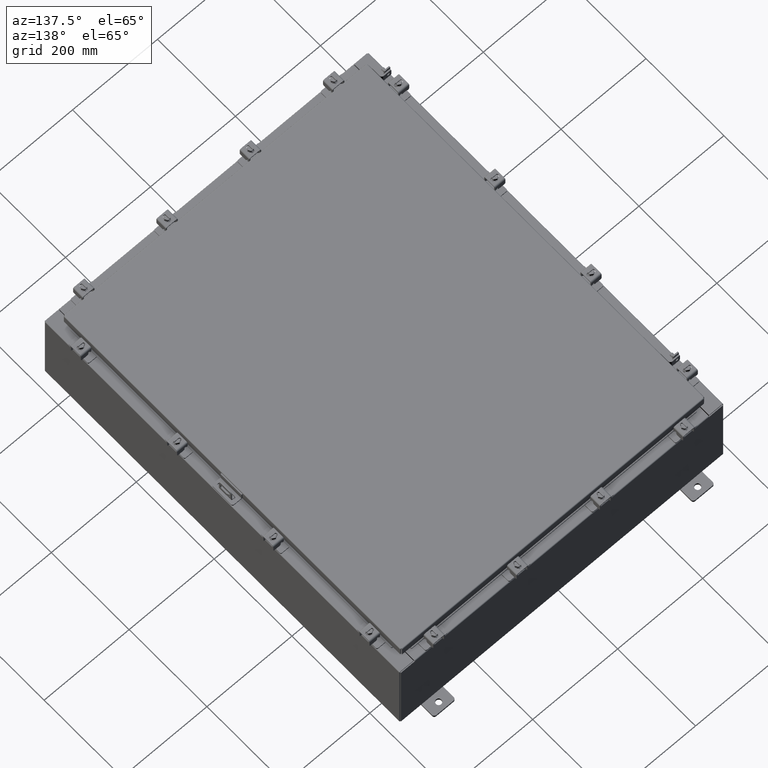
[diagram: clean part render]
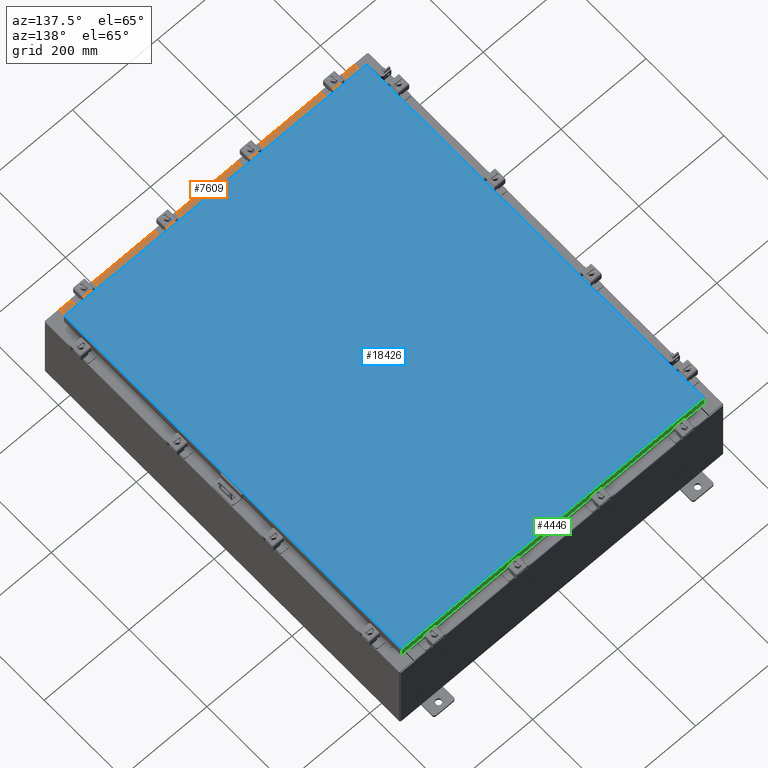
[diagram: same view with three faces highlighted in distinct colors, each labeled with its STEP entity id]
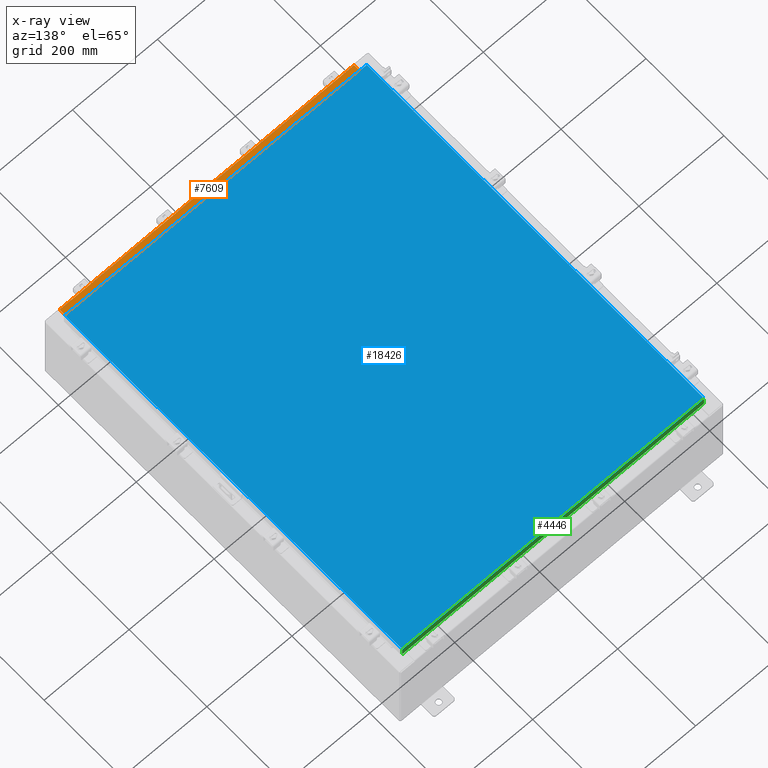
[diagram: x-ray of the same camera — body ghosted, the three highlighted faces saturated]
A machine part, auxiliary view with three faces highlighted in distinct colors.
The next image is the same camera in x-ray (body ghosted, the three faces saturated) — at least one of them is partly hidden behind the body in this view.
Their STEP definitions:

[orange] entity #7609 — the highlighted planar face has unit normal (-0, -0, 1).
#338 = CARTESIAN_POINT ( 'NONE',  ( 13.63720000000000400, -1.287299999999999200, 4.000000000000005300 ) ) ;
#1616 = CARTESIAN_POINT ( 'NONE',  ( 6.596618369225443700E-016, -0.08770000000000026400, 4.000000000000000900 ) ) ;
#1857 = CARTESIAN_POINT ( 'NONE',  ( 13.63720000000000400, -1.287299999999999200, 4.000000000000006200 ) ) ;
#1987 = FACE_OUTER_BOUND ( 'NONE', #8365, .T. ) ;
#2007 = DIRECTION ( 'NONE',  ( -1.000000000000000000, -3.373213873859530100E-017, -1.665334536937734800E-016 ) ) ;
#2935 = EDGE_CURVE ( 'NONE', #21960, #7464, #13908, .T. ) ;
#3644 = EDGE_CURVE ( 'NONE', #14275, #21960, #10017, .T. ) ;
#3762 = EDGE_CURVE ( 'NONE', #14275, #14029, #12508, .T. ) ;
#4828 = DIRECTION ( 'NONE',  ( 5.376446204296997200E-017, 1.000000000000000000, -3.599933028129398900E-015 ) ) ;
#4849 = VECTOR ( 'NONE', #14474, 39.37007874015748100 ) ;
#5131 = AXIS2_PLACEMENT_3D ( 'NONE', #22184, #20530, #10098 ) ;
#6847 = CARTESIAN_POINT ( 'NONE',  ( 13.63720000000000400, -0.08770000000000026400, 4.000000000000001800 ) ) ;
#7317 = VECTOR ( 'NONE', #2007, 39.37007874015748100 ) ;
#7464 = VERTEX_POINT ( 'NONE', #14146 ) ;
#7609 = ADVANCED_FACE ( 'NONE', ( #1987 ), #18805, .T. ) ;
#8241 = ORIENTED_EDGE ( 'NONE', *, *, #3644, .F. ) ;
#8365 = EDGE_LOOP ( 'NONE', ( #21089, #13527, #8241, #19393 ) ) ;
#8710 = VECTOR ( 'NONE', #21926, 39.37007874015748100 ) ;
#9152 = VECTOR ( 'NONE', #4828, 39.37007874015748100 ) ;
#9681 = LINE ( 'NONE', #22139, #9152 ) ;
#10017 = LINE ( 'NONE', #10399, #4849 ) ;
#10098 = DIRECTION ( 'NONE',  ( -5.376446204296997200E-017, -1.000000000000000000, 3.599933028129398900E-015 ) ) ;
#10399 = CARTESIAN_POINT ( 'NONE',  ( 13.63720000000000400, -1.300299999999999300, 4.000000000000006200 ) ) ;
#12508 = LINE ( 'NONE', #1616, #7317 ) ;
#13135 = EDGE_CURVE ( 'NONE', #7464, #14029, #9681, .T. ) ;
#13527 = ORIENTED_EDGE ( 'NONE', *, *, #2935, .F. ) ;
#13908 = LINE ( 'NONE', #338, #8710 ) ;
#14029 = VERTEX_POINT ( 'NONE', #17964 ) ;
#14146 = CARTESIAN_POINT ( 'NONE',  ( -13.63719999999999800, -1.287299999999999200, 4.000000000000001800 ) ) ;
#14275 = VERTEX_POINT ( 'NONE', #6847 ) ;
#14474 = DIRECTION ( 'NONE',  ( -5.376446204296997200E-017, -1.000000000000000000, 3.599933028129398900E-015 ) ) ;
#17964 = CARTESIAN_POINT ( 'NONE',  ( -13.63719999999999800, -0.08770000000000026400, 3.999999999999997800 ) ) ;
#18805 = PLANE ( 'NONE',  #5131 ) ;
#19393 = ORIENTED_EDGE ( 'NONE', *, *, #3762, .T. ) ;
#20530 = DIRECTION ( 'NONE',  ( 1.665334536937734800E-016, 3.599933028129398900E-015, 1.000000000000000000 ) ) ;
#21089 = ORIENTED_EDGE ( 'NONE', *, *, #13135, .F. ) ;
#21926 = DIRECTION ( 'NONE',  ( -1.000000000000000000, -5.376446204297056400E-017, -1.665334536937734800E-016 ) ) ;
#21960 = VERTEX_POINT ( 'NONE', #1857 ) ;
#22139 = CARTESIAN_POINT ( 'NONE',  ( -13.63719999999999800, -0.07470000000000015500, 3.999999999999997800 ) ) ;
#22184 = CARTESIAN_POINT ( 'NONE',  ( 6.661338148662792400E-016, 1.311287036958846300E-014, 4.000000000000000000 ) ) ;

[blue] entity #18426 — the highlighted planar face has unit normal (0, 0, -1).
#1111 = PLANE ( 'NONE',  #9171 ) ;
#1814 = CARTESIAN_POINT ( 'NONE',  ( -13.99029999999999800, -17.00630000000000300, 0.0000000000000000000 ) ) ;
#2347 = VECTOR ( 'NONE', #3561, 39.37007874015748100 ) ;
#2786 = DIRECTION ( 'NONE',  ( 0.0000000000000000000, 1.000000000000000000, 0.0000000000000000000 ) ) ;
#2802 = DIRECTION ( 'NONE',  ( 0.0000000000000000000, -1.000000000000000000, 0.0000000000000000000 ) ) ;
#2991 = VECTOR ( 'NONE', #2786, 39.37007874015748100 ) ;
#3561 = DIRECTION ( 'NONE',  ( 1.000000000000000000, -0.0000000000000000000, -0.0000000000000000000 ) ) ;
#3687 = VERTEX_POINT ( 'NONE', #6321 ) ;
#4545 = CARTESIAN_POINT ( 'NONE',  ( -13.99030000000000000, 17.00630000000000000, 0.0000000000000000000 ) ) ;
#4590 = EDGE_CURVE ( 'NONE', #4741, #3687, #5343, .T. ) ;
#4614 = DIRECTION ( 'NONE',  ( 0.0000000000000000000, 0.0000000000000000000, -1.000000000000000000 ) ) ;
#4741 = VERTEX_POINT ( 'NONE', #21136 ) ;
#4804 = VECTOR ( 'NONE', #10349, 39.37007874015748100 ) ;
#5158 = ORIENTED_EDGE ( 'NONE', *, *, #14359, .T. ) ;
#5343 = LINE ( 'NONE', #7527, #4804 ) ;
#6321 = CARTESIAN_POINT ( 'NONE',  ( -13.99030000000000000, 17.00630000000000000, 0.0000000000000000000 ) ) ;
#7080 = VERTEX_POINT ( 'NONE', #16627 ) ;
#7527 = CARTESIAN_POINT ( 'NONE',  ( 13.99029999999999600, 17.00629999999999600, 1.092739197465705300E-015 ) ) ;
#7622 = LINE ( 'NONE', #13245, #2991 ) ;
#9171 = AXIS2_PLACEMENT_3D ( 'NONE', #9774, #4614, #16806 ) ;
#9774 = CARTESIAN_POINT ( 'NONE',  ( 0.0000000000000000000, 0.0000000000000000000, 0.0000000000000000000 ) ) ;
#10349 = DIRECTION ( 'NONE',  ( -1.000000000000000000, -0.0000000000000000000, -0.0000000000000000000 ) ) ;
#10510 = EDGE_LOOP ( 'NONE', ( #5158, #16084, #21099, #18890 ) ) ;
#11598 = EDGE_CURVE ( 'NONE', #3687, #7080, #20668, .T. ) ;
#11601 = LINE ( 'NONE', #1814, #2347 ) ;
#13245 = CARTESIAN_POINT ( 'NONE',  ( 13.99029999999999800, -17.00630000000000700, 0.0000000000000000000 ) ) ;
#14250 = VERTEX_POINT ( 'NONE', #22241 ) ;
#14359 = EDGE_CURVE ( 'NONE', #7080, #14250, #11601, .T. ) ;
#16071 = VECTOR ( 'NONE', #2802, 39.37007874015748100 ) ;
#16084 = ORIENTED_EDGE ( 'NONE', *, *, #17859, .T. ) ;
#16627 = CARTESIAN_POINT ( 'NONE',  ( -13.99029999999999800, -17.00630000000000300, 0.0000000000000000000 ) ) ;
#16806 = DIRECTION ( 'NONE',  ( -1.000000000000000000, 0.0000000000000000000, -0.0000000000000000000 ) ) ;
#17859 = EDGE_CURVE ( 'NONE', #14250, #4741, #7622, .T. ) ;
#18426 = ADVANCED_FACE ( 'NONE', ( #21700 ), #1111, .F. ) ;
#18890 = ORIENTED_EDGE ( 'NONE', *, *, #11598, .T. ) ;
#20668 = LINE ( 'NONE', #4545, #16071 ) ;
#21099 = ORIENTED_EDGE ( 'NONE', *, *, #4590, .T. ) ;
#21136 = CARTESIAN_POINT ( 'NONE',  ( 13.99029999999999600, 17.00629999999999600, 1.092739197465705300E-015 ) ) ;
#21700 = FACE_OUTER_BOUND ( 'NONE', #10510, .T. ) ;
#22241 = CARTESIAN_POINT ( 'NONE',  ( 13.99029999999999800, -17.00630000000000700, 0.0000000000000000000 ) ) ;

[green] entity #4446 — the highlighted planar face has unit normal (0, -1, -0).
#1605 = VERTEX_POINT ( 'NONE', #8461 ) ;
#2456 = VERTEX_POINT ( 'NONE', #15762 ) ;
#3305 = LINE ( 'NONE', #10341, #3833 ) ;
#3721 = VECTOR ( 'NONE', #15941, 39.37007874015748100 ) ;
#3833 = VECTOR ( 'NONE', #15559, 39.37007874015748100 ) ;
#3936 = DIRECTION ( 'NONE',  ( 1.000000000000000000, -4.379057701015054300E-047, 1.261330583805776300E-016 ) ) ;
#4446 = ADVANCED_FACE ( 'NONE', ( #21389 ), #20830, .F. ) ;
#4641 = EDGE_CURVE ( 'NONE', #1605, #2456, #8361, .T. ) ;
#5461 = ORIENTED_EDGE ( 'NONE', *, *, #16146, .F. ) ;
#6075 = EDGE_CURVE ( 'NONE', #11363, #7924, #20542, .T. ) ;
#6134 = CARTESIAN_POINT ( 'NONE',  ( 13.98915786437626500, 17.09399999999999800, -0.08769999999999808500 ) ) ;
#6290 = VERTEX_POINT ( 'NONE', #13047 ) ;
#6390 = ORIENTED_EDGE ( 'NONE', *, *, #17023, .F. ) ;
#6544 = CARTESIAN_POINT ( 'NONE',  ( 13.23915786437625100, 17.09399999999999800, -0.8500000000000043100 ) ) ;
#7417 = LINE ( 'NONE', #9167, #10955 ) ;
#7924 = VERTEX_POINT ( 'NONE', #11107 ) ;
#8361 = LINE ( 'NONE', #20926, #3721 ) ;
#8417 = EDGE_CURVE ( 'NONE', #6290, #1605, #21867, .T. ) ;
#8461 = CARTESIAN_POINT ( 'NONE',  ( -13.98915786437626900, 17.09399999999999800, -0.8500000000000032000 ) ) ;
#8541 = VECTOR ( 'NONE', #3936, 39.37007874015748100 ) ;
#9167 = CARTESIAN_POINT ( 'NONE',  ( -14.07799999999999800, 17.09399999999999800, -0.08770000000000026400 ) ) ;
#10341 = CARTESIAN_POINT ( 'NONE',  ( -13.23915786437626400, 17.09399999999999800, -0.8500000000000043100 ) ) ;
#10465 = ORIENTED_EDGE ( 'NONE', *, *, #15449, .F. ) ;
#10955 = VECTOR ( 'NONE', #21300, 39.37007874015748100 ) ;
#10978 = VERTEX_POINT ( 'NONE', #6544 ) ;
#11107 = CARTESIAN_POINT ( 'NONE',  ( 13.98915786437626500, 17.09399999999999800, -0.8499999999999999800 ) ) ;
#11363 = VERTEX_POINT ( 'NONE', #6134 ) ;
#12277 = AXIS2_PLACEMENT_3D ( 'NONE', #21429, #21682, #21726 ) ;
#12299 = ORIENTED_EDGE ( 'NONE', *, *, #4641, .F. ) ;
#12635 = LINE ( 'NONE', #17875, #8541 ) ;
#13047 = CARTESIAN_POINT ( 'NONE',  ( -13.98915786437626700, 17.09399999999999800, -0.08769999999999918100 ) ) ;
#13081 = ORIENTED_EDGE ( 'NONE', *, *, #6075, .T. ) ;
#14199 = EDGE_LOOP ( 'NONE', ( #5461, #13081, #10465, #6390, #12299, #17587 ) ) ;
#15101 = CARTESIAN_POINT ( 'NONE',  ( 13.98915786437626700, 17.09399999999999800, 4.808052468849102900E-014 ) ) ;
#15255 = DIRECTION ( 'NONE',  ( 0.0000000000000000000, 2.818880942772347100E-015, -1.000000000000000000 ) ) ;
#15449 = EDGE_CURVE ( 'NONE', #10978, #7924, #12635, .T. ) ;
#15559 = DIRECTION ( 'NONE',  ( 1.000000000000000000, -0.0000000000000000000, -0.0000000000000000000 ) ) ;
#15762 = CARTESIAN_POINT ( 'NONE',  ( -13.23915786437626400, 17.09399999999999800, -0.8500000000000043100 ) ) ;
#15941 = DIRECTION ( 'NONE',  ( 1.000000000000000000, -4.379057701015054300E-047, 1.261330583805776300E-016 ) ) ;
#16146 = EDGE_CURVE ( 'NONE', #11363, #6290, #7417, .T. ) ;
#16492 = VECTOR ( 'NONE', #15255, 39.37007874015748100 ) ;
#17023 = EDGE_CURVE ( 'NONE', #2456, #10978, #3305, .T. ) ;
#17309 = VECTOR ( 'NONE', #18072, 39.37007874015748100 ) ;
#17587 = ORIENTED_EDGE ( 'NONE', *, *, #8417, .F. ) ;
#17875 = CARTESIAN_POINT ( 'NONE',  ( -14.07799999999999800, 17.09399999999999800, -0.8500000000000032000 ) ) ;
#18072 = DIRECTION ( 'NONE',  ( -0.0000000000000000000, 2.818880942772347100E-015, -1.000000000000000000 ) ) ;
#19736 = CARTESIAN_POINT ( 'NONE',  ( -13.98915786437626900, 17.09399999999999800, -0.07470000000000015500 ) ) ;
#20542 = LINE ( 'NONE', #15101, #16492 ) ;
#20830 = PLANE ( 'NONE',  #12277 ) ;
#20926 = CARTESIAN_POINT ( 'NONE',  ( -14.07799999999999800, 17.09399999999999800, -0.8500000000000032000 ) ) ;
#21300 = DIRECTION ( 'NONE',  ( -1.000000000000000000, -1.367515671240777000E-031, -7.762034361881699600E-017 ) ) ;
#21389 = FACE_OUTER_BOUND ( 'NONE', #14199, .T. ) ;
#21429 = CARTESIAN_POINT ( 'NONE',  ( 0.0000000000000000000, 17.09399999999999800, 4.808052468849102900E-014 ) ) ;
#21682 = DIRECTION ( 'NONE',  ( 3.555540745226020900E-031, -1.000000000000000000, -2.818880942772347100E-015 ) ) ;
#21726 = DIRECTION ( 'NONE',  ( 0.0000000000000000000, 2.818880942772347100E-015, -1.000000000000000000 ) ) ;
#21867 = LINE ( 'NONE', #19736, #17309 ) ;